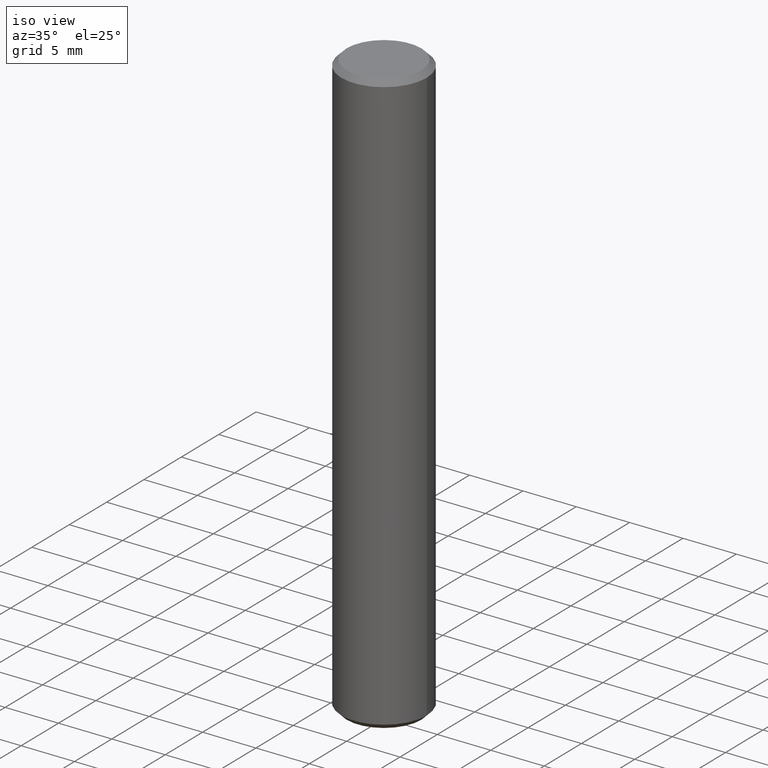
[diagram: clean part render]
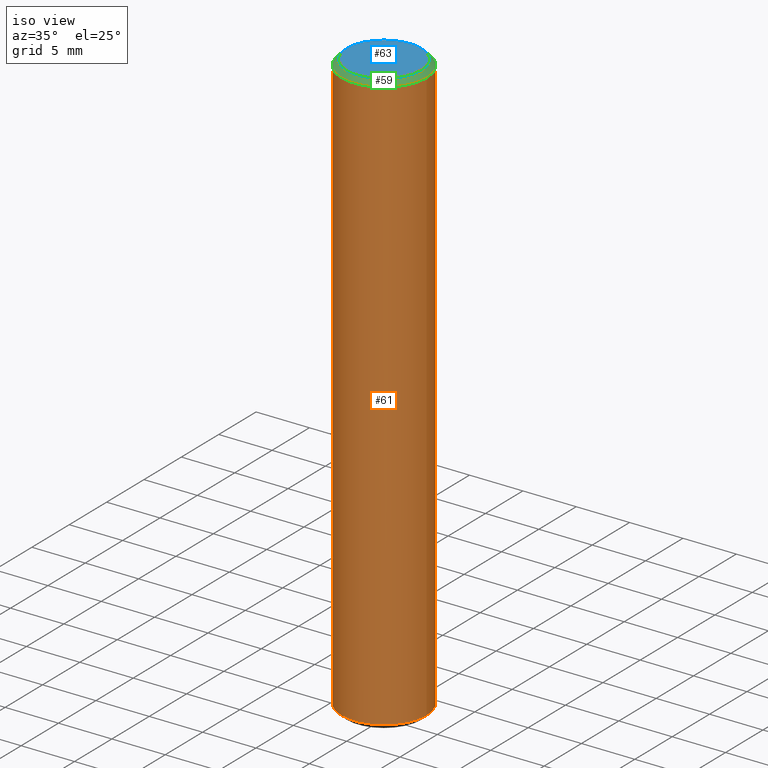
[diagram: same view with three faces highlighted in distinct colors, each labeled with its STEP entity id]
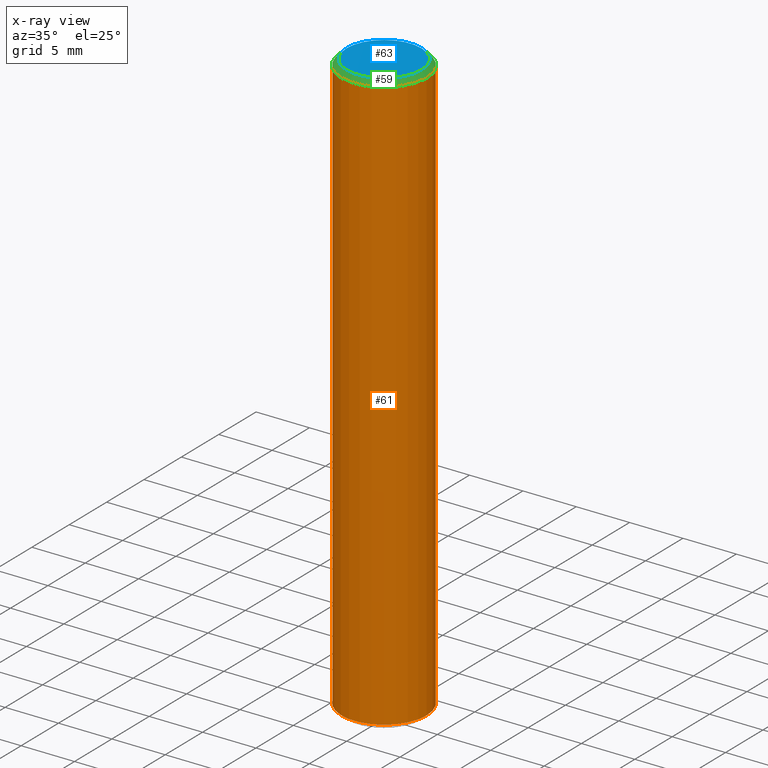
[diagram: x-ray of the same camera — body ghosted, the three highlighted faces saturated]
A machine part, iso view with three faces highlighted in distinct colors.
The next image is the same camera in x-ray (body ghosted, the three faces saturated) — at least one of them is partly hidden behind the body in this view.
Their STEP definitions:

[orange] entity #61 — the highlighted cylindrical surface (bore or boss wall) has radius 4 mm, axis along (-0, -0, 1).
#20=CYLINDRICAL_SURFACE('',#72,4.00000000000003);
#23=FACE_BOUND('',#34,.T.);
#26=FACE_OUTER_BOUND('',#33,.T.);
#33=EDGE_LOOP('',(#53));
#34=EDGE_LOOP('',(#54));
#38=CIRCLE('',#68,4.00000000000003);
#40=CIRCLE('',#71,4.00000000000003);
#42=VERTEX_POINT('',#99);
#44=VERTEX_POINT('',#104);
#46=EDGE_CURVE('',#42,#42,#38,.T.);
#48=EDGE_CURVE('',#44,#44,#40,.T.);
#53=ORIENTED_EDGE('',*,*,#48,.T.);
#54=ORIENTED_EDGE('',*,*,#46,.T.);
#61=ADVANCED_FACE('',(#26,#23),#20,.T.);
#68=AXIS2_PLACEMENT_3D('',#100,#81,#82);
#71=AXIS2_PLACEMENT_3D('',#105,#87,#88);
#72=AXIS2_PLACEMENT_3D('',#106,#89,#90);
#81=DIRECTION('center_axis',(2.40790686631312E-15,1.49346782869324E-15,
-1.));
#82=DIRECTION('ref_axis',(1.,3.07392999943088E-15,2.40790686631312E-15));
#87=DIRECTION('center_axis',(-2.40790686631312E-15,-1.49346782869324E-15,
1.));
#88=DIRECTION('ref_axis',(1.,2.18575157973074E-15,2.40790686631312E-15));
#89=DIRECTION('center_axis',(-2.40790686631312E-15,-1.49346782869324E-15,
1.));
#90=DIRECTION('ref_axis',(1.,2.18575157973074E-15,2.40790686631312E-15));
#99=CARTESIAN_POINT('',(-4.00000000000094,-2.21836544743691E-12,-0.500000000001953));
#100=CARTESIAN_POINT('Origin',(-9.43689570931383E-13,6.66133814775094E-13,
-0.500000000001943));
#104=CARTESIAN_POINT('',(3.9999999999987,-3.29417049194092E-12,-54.4999999999987));
#105=CARTESIAN_POINT('Origin',(-1.33226762955019E-12,-3.30291349825984E-12,
-54.4999999999987));
#106=CARTESIAN_POINT('Origin',(2.77555756156289E-14,-2.16493489801906E-12,
-54.9999999999993));

[blue] entity #63 — the highlighted planar face has unit normal (0, -0, 1).
#19=PLANE('',#74);
#28=FACE_OUTER_BOUND('',#36,.T.);
#36=EDGE_LOOP('',(#56));
#37=CIRCLE('',#67,3.50000000000003);
#41=VERTEX_POINT('',#97);
#45=EDGE_CURVE('',#41,#41,#37,.T.);
#56=ORIENTED_EDGE('',*,*,#45,.T.);
#63=ADVANCED_FACE('',(#28),#19,.T.);
#67=AXIS2_PLACEMENT_3D('',#98,#79,#80);
#74=AXIS2_PLACEMENT_3D('',#108,#93,#94);
#79=DIRECTION('center_axis',(-2.40790686631312E-15,-1.49346782869324E-15,
1.));
#80=DIRECTION('ref_axis',(1.,2.18575157973074E-15,2.40790686631312E-15));
#93=DIRECTION('center_axis',(2.60016405010531E-15,-1.49346782869323E-15,
1.));
#94=DIRECTION('ref_axis',(1.,2.18575157973078E-15,-2.60016405010547E-15));
#97=CARTESIAN_POINT('',(-3.50000000000222,8.80355218233308E-13,-2.67296293313247E-12));
#98=CARTESIAN_POINT('Origin',(-2.22044604925031E-12,8.88178419700125E-13,
-2.66453525910038E-12));
#108=CARTESIAN_POINT('Origin',(-2.22044604925031E-12,8.88178419700125E-13,
-2.66453525910038E-12));

[green] entity #59 — the highlighted conical surface has half-angle 45 deg.
#21=FACE_BOUND('',#30,.T.);
#24=FACE_OUTER_BOUND('',#29,.T.);
#29=EDGE_LOOP('',(#49));
#30=EDGE_LOOP('',(#50));
#37=CIRCLE('',#67,3.50000000000003);
#38=CIRCLE('',#68,4.00000000000003);
#41=VERTEX_POINT('',#97);
#42=VERTEX_POINT('',#99);
#45=EDGE_CURVE('',#41,#41,#37,.T.);
#46=EDGE_CURVE('',#42,#42,#38,.T.);
#49=ORIENTED_EDGE('',*,*,#45,.F.);
#50=ORIENTED_EDGE('',*,*,#46,.F.);
#57=CONICAL_SURFACE('',#66,3.50000000000003,0.785398163397447);
#59=ADVANCED_FACE('',(#24,#21),#57,.T.);
#66=AXIS2_PLACEMENT_3D('',#96,#77,#78);
#67=AXIS2_PLACEMENT_3D('',#98,#79,#80);
#68=AXIS2_PLACEMENT_3D('',#100,#81,#82);
#77=DIRECTION('center_axis',(2.40790686631312E-15,1.49346782869324E-15,
-1.));
#78=DIRECTION('ref_axis',(-1.,-2.18575157973077E-15,-2.40790686631312E-15));
#79=DIRECTION('center_axis',(-2.40790686631312E-15,-1.49346782869324E-15,
1.));
#80=DIRECTION('ref_axis',(1.,2.18575157973074E-15,2.40790686631312E-15));
#81=DIRECTION('center_axis',(2.40790686631312E-15,1.49346782869324E-15,
-1.));
#82=DIRECTION('ref_axis',(1.,3.07392999943088E-15,2.40790686631312E-15));
#96=CARTESIAN_POINT('Origin',(-2.22044604925031E-12,8.88178419700125E-13,
-2.66453525910038E-12));
#97=CARTESIAN_POINT('',(-3.50000000000222,8.80355218233308E-13,-2.67296293313247E-12));
#98=CARTESIAN_POINT('Origin',(-2.22044604925031E-12,8.88178419700125E-13,
-2.66453525910038E-12));
#99=CARTESIAN_POINT('',(-4.00000000000094,-2.21836544743691E-12,-0.500000000001953));
#100=CARTESIAN_POINT('Origin',(-9.43689570931383E-13,6.66133814775094E-13,
-0.500000000001943));